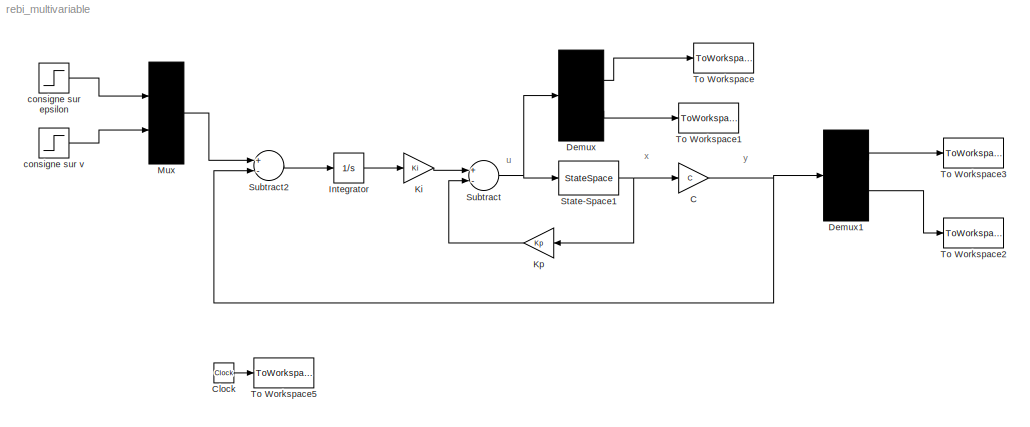
MODEL rebi_multivariable
KIND model
CONFIG PostLoadFcn = , if any(exist('dsrtsu_mdlpostloadfcn', 'file') == [2, 3, 6]), try dsrtsu_mdlpostloadfcn('Execute', bdroot); catch fprintf('Error in PostLoadFcn (dsrtsu_mdlpostloadfcn) for model \"%s\":\\n %s\\n', bdroot, lasterr); end, end, \n
BLOCK [Gain] C
  Gain = C
  Multiplication = Matrix(K*u) (u vector)
  OutDataTypeStr = Inherit: Inherit via internal rule
  ParamDataTypeStr = Inherit: Inherit via internal rule
  SID = 38
  SaturateOnIntegerOverflow = off
BLOCK [Clock] Clock
  Decimation = 10
  SID = 59
BLOCK [Demux] Demux
  Outputs = 2
  Ports = [1, 2]
  SID = 44
BLOCK [Demux] Demux1
  Outputs = 2
  Ports = [1, 2]
  SID = 46
BLOCK [Integrator] Integrator
  Ports = [1, 1]
  SID = 11
BLOCK [Gain] Ki
  Gain = Ki
  Multiplication = Matrix(K*u) (u vector)
  OutDataTypeStr = Inherit: Inherit via internal rule
  ParamDataTypeStr = Inherit: Inherit via internal rule
  SID = 6
  SaturateOnIntegerOverflow = off
BLOCK [Gain] Kp
  Gain = Kp
  Multiplication = Matrix(K*u) (u vector)
  OutDataTypeStr = Inherit: Inherit via internal rule
  ParamDataTypeStr = Inherit: Inherit via internal rule
  SID = 7
  SaturateOnIntegerOverflow = off
BLOCK [Mux] Mux
  Inputs = 2
  Ports = [2, 1]
  SID = 43
BLOCK [StateSpace] State-Space1
  A = A
  B = B
  C = eye(5)
  D = zeros(5,2)
  SID = 37
BLOCK [Sum] Subtract
  InputSameDT = off
  Inputs = +-
  OutDataTypeStr = Inherit: Inherit via internal rule
  Ports = [2, 1]
  SID = 3
  SaturateOnIntegerOverflow = off
BLOCK [Sum] Subtract2
  InputSameDT = off
  Inputs = +-
  OutDataTypeStr = Inherit: Inherit via internal rule
  Ports = [2, 1]
  SID = 5
  SaturateOnIntegerOverflow = off
BLOCK [ToWorkspace] To Workspace
  MaxDataPoints = inf
  Ports = [1]
  SID = 55
  SampleTime = -1
  SaveFormat = Array
  VariableName = ug
BLOCK [ToWorkspace] To Workspace1
  MaxDataPoints = inf
  Ports = [1]
  SID = 56
  SampleTime = -1
  SaveFormat = Array
  VariableName = ud
BLOCK [ToWorkspace] To Workspace2
  MaxDataPoints = inf
  Ports = [1]
  SID = 57
  SampleTime = -1
  SaveFormat = Array
  VariableName = v
BLOCK [ToWorkspace] To Workspace3
  MaxDataPoints = inf
  Ports = [1]
  SID = 58
  SampleTime = -1
  SaveFormat = Array
  VariableName = eps
BLOCK [ToWorkspace] To Workspace5
  MaxDataPoints = inf
  Ports = [1]
  SID = 61
  SampleTime = -1
  SaveFormat = Array
  VariableName = t
BLOCK [Step] consigne sur epsilon
  After = pi/6
  SID = 1
  SampleTime = 0
  Time = 6
BLOCK [Step] consigne sur v
  SID = 42
  SampleTime = 0
  Time = 6
ANNOTATION (root): u
ANNOTATION (root): x
ANNOTATION (root): y
NET C:1 -> Demux1:1, Subtract2:2
LINE Clock:1 -> To Workspace5:1
LINE Demux1:1 -> To Workspace3:1
LINE Demux1:2 -> To Workspace2:1
LINE Demux:1 -> To Workspace:1
LINE Demux:2 -> To Workspace1:1
LINE Integrator:1 -> Ki:1
LINE Ki:1 -> Subtract:1
LINE Kp:1 -> Subtract:2
LINE Mux:1 -> Subtract2:1
NET State-Space1:1 -> C:1, Kp:1
LINE Subtract2:1 -> Integrator:1
NET Subtract:1 -> Demux:1, State-Space1:1
LINE consigne sur epsilon:1 -> Mux:1
LINE consigne sur v:1 -> Mux:2
note: NET lines group one-source signal fan-out (src -> all destinations, sorted); 1:1 wires keep LINE
